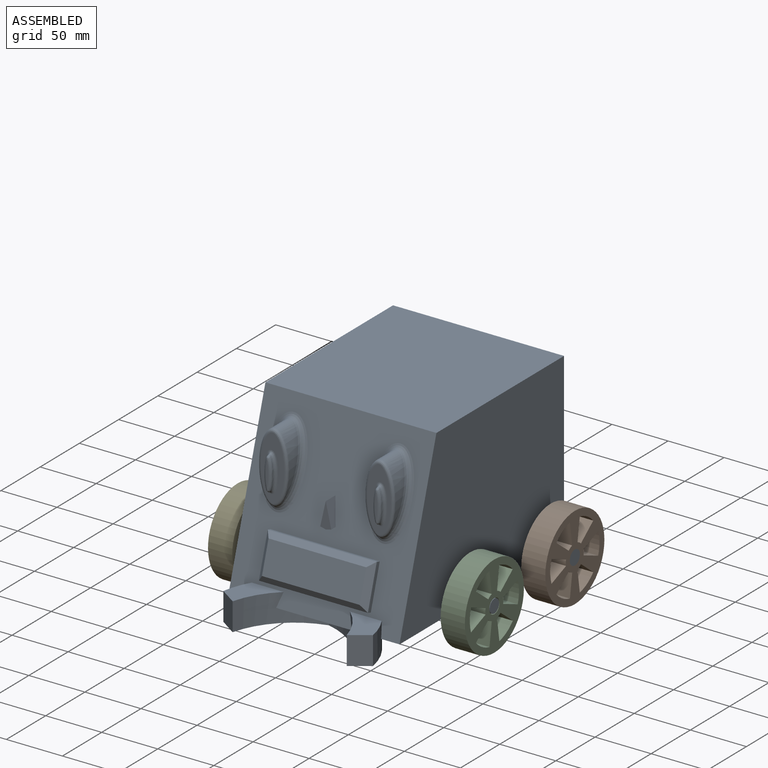
[diagram: assembled view]
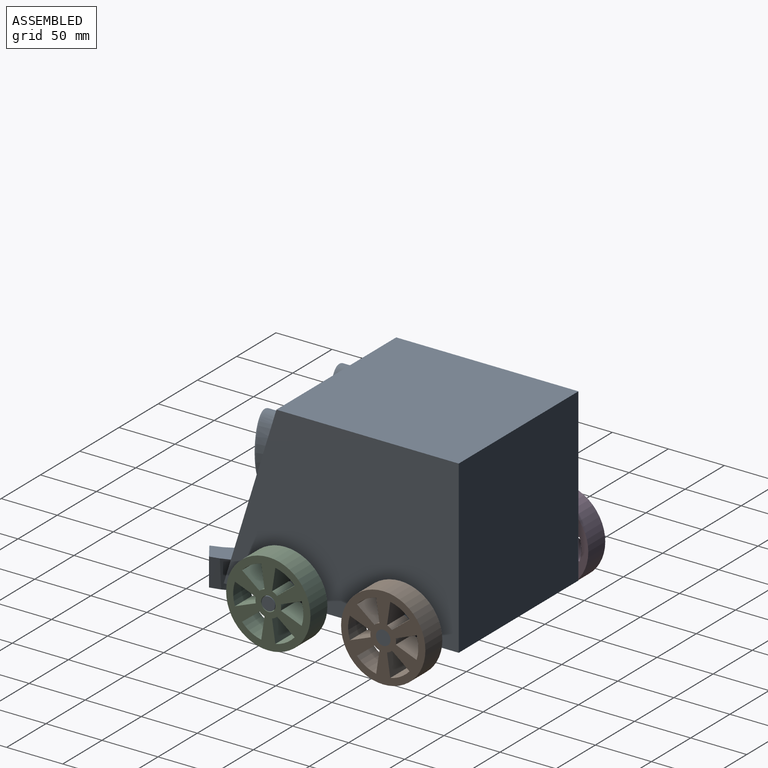
[diagram: assembled view, second angle]
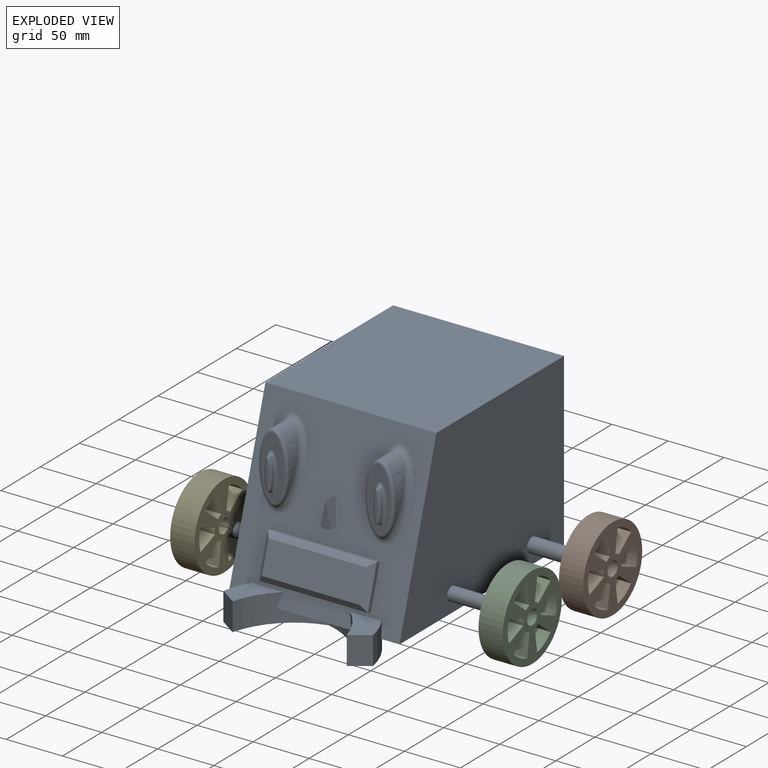
[diagram: exploded view]
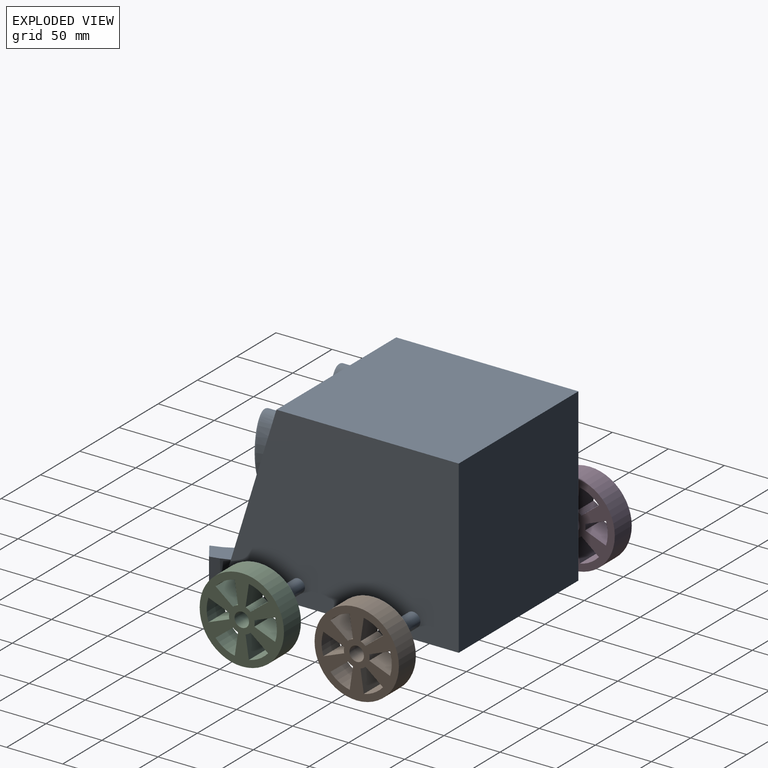
[diagram: exploded view, second angle]
ASSEMBLY  parts=5 mates=4
PART A: 62 faces, bbox 229.4x240.6x165.2 mm
  f0: plane 152.79x152.79mm, normal (0,-0.96,0.29), area 15368.9mm2, adj f1,f7,f8,f13,f17,f18,f19,f20
  f1: plane 209.56x152.54mm, normal (-1,0,0), area 28136.3mm2, adj f0,f2,f3,f5,f7,f23
  f2: plane 152.54x152.54mm, normal (0,1,0), area 23267mm2, adj f1,f7,f8,f23
  f3: cylinder r=6.48mm len=38.48mm, axis (-1,0,0), area 1567.1mm2, adj f1,f4
  f4: plane 12.96x12.96mm, normal (-1,0,0), area 132mm2, adj f3
  f5: cylinder r=5.98mm len=38.48mm, axis (-1,0,0), area 1446.3mm2, adj f1,f6
  f6: plane 11.96x11.96mm, normal (-1,0,0), area 112.4mm2, adj f5
  f7: plane 162.56x152.54mm, normal (0,0,1), area 24796.1mm2, adj f0,f1,f2,f8
  f8: plane 209.56x152.54mm, normal (1,0,0), area 28136.3mm2, adj f0,f2,f7,f9,f11,f23
  f9: cylinder r=6.48mm len=38.09mm, axis (-1,0,0), area 1551.4mm2, adj f8,f10
  f10: plane 12.96x12.96mm, normal (1,0,0), area 132mm2, adj f9
  f11: cylinder r=5.98mm len=38.09mm, axis (-1,0,0), area 1431.8mm2, adj f8,f12
  f12: plane 11.96x11.96mm, normal (1,0,0), area 112.4mm2, adj f11
  f13: cylinder r=68.83mm len=66.7mm, axis (0,0,-1), area 1476.7mm2, adj f0,f14,f16,f17,f22,f23
  f14: plane 133.41x68.04mm, normal (0,0,-1), area 3497.4mm2, adj f13,f15,f16,f18,f20,f22
  f15: plane 24.89x15.8mm, normal (-0.56,-0.83,0), area 476.6mm2, adj f14,f20,f21,f22
  f16: plane 24.89x15.8mm, normal (0.56,-0.83,0), area 476.6mm2, adj f13,f14,f17,f18
  f17: plane 37.11x34.59mm, normal (0,0,1), area 662.8mm2, adj f0,f13,f16,f18
  f18: cylinder r=69.75mm len=50.9mm, axis (0,0,-1), area 1411.3mm2, adj f0,f14,f16,f17,f19,f20
  f19: plane 67.21x19.3mm, normal (0,0,-1), area 791mm2, adj f0,f18,f20
  f20: cylinder r=69.75mm len=50.9mm, axis (0,0,-1), area 1411.3mm2, adj f0,f14,f15,f18,f19,f21
  f21: plane 37.11x34.59mm, normal (0,0,1), area 662.8mm2, adj f0,f15,f20,f22
  f22: cylinder r=68.83mm len=66.7mm, axis (0,0,-1), area 1476.7mm2, adj f0,f13,f14,f15,f21,f23
  f23: plane 209.56x152.54mm, normal (0,0,-1), area 28792.8mm2, adj f0,f1,f2,f8,f13,f22
  f24: plane 97.22x3.64mm, normal (0,-0.29,-0.96), area 370.4mm2, adj f0,f25,f30,f32
  f25: plane 97.22x6.35mm, normal (0,-0.88,-0.47), area 662mm2, adj f24,f26,f28,f29
  f26: plane 36.81x14.7mm, normal (-0.71,-0.68,0.21), area 240.2mm2, adj f25,f27,f28,f32
  f27: plane 97.22x6.35mm, normal (0,-0.47,0.88), area 662mm2, adj f26,f28,f29,f31
  f28: plane 87.06x27.1mm, normal (0,-0.96,0.29), area 2468.8mm2, adj f25,f26,f27,f29
  f29: plane 36.81x14.7mm, normal (0.71,-0.68,0.21), area 240.2mm2, adj f25,f27,f28,f30
  f30: plane 37.93x14.98mm, normal (1,0,0), area 146.7mm2, adj f0,f24,f29,f31
  f31: plane 97.22x3.64mm, normal (0,0.29,0.96), area 370.4mm2, adj f0,f27,f30,f32
  f32: plane 37.93x14.98mm, normal (-1,0,0), area 146.7mm2, adj f0,f24,f26,f31
  f33: plane 5.57x4.98mm, normal (-0.22,0,-0.97), area 27.6mm2, adj f0,f34,f35,f37
  f34: plane 22.83x9.8mm, normal (0,-1,0), area 111.9mm2, adj f33,f35,f36,f37
  f35: plane 5.57x4.83mm, normal (0.23,0,-0.97), area 26.8mm2, adj f0,f33,f34,f36
  f36: plane 21.68x12.26mm, normal (0.98,0,0.22), area 198mm2, adj f0,f34,f35,f37
  f37: plane 21.68x12.26mm, normal (-0.97,0,0.22), area 198.3mm2, adj f0,f33,f34,f36
  f38: bspline ~25.77x13.36mm, area 185.7mm2, adj f0,f39,f49
  f39: bspline ~62.02x26.34mm, area 536.5mm2, adj f38,f40,f48
  f40: plane 57.48x21.45mm, normal (0,-1,0), area 606.1mm2, adj f39,f41
  f41: bspline ~35.21x12.05mm, area 270.4mm2, adj f40,f42
  f42: extruded ~30.22x7.12mm, area 27.7mm2, adj f41,f43,f45,f46,f47
  f43: bspline ~28.16x4.37mm, area 95.6mm2, adj f42,f44,f45,f47
  f44: plane 21.39x2.23mm, normal (0,-1,0), area 33.1mm2, adj f43,f46
  f45: bspline ~4.46x2.91mm, area 8.5mm2, adj f42,f43,f46
  f46: bspline ~28.13x4.39mm, area 95.7mm2, adj f42,f44,f45,f47
  f47: bspline ~4.46x2.91mm, area 11.7mm2, adj f42,f43,f46
  f48: extruded ~57.02x26.34mm, area 0mm2, adj f39,f49
  f49: bspline ~66.2x36.51mm, area 1092.4mm2, adj f0,f38,f48
  f50: bspline ~25.77x13.36mm, area 185.7mm2, adj f0,f51,f61
  f51: bspline ~62.02x26.34mm, area 536.5mm2, adj f50,f52,f60
  f52: plane 57.48x21.45mm, normal (0,-1,0), area 606.1mm2, adj f51,f53
  f53: bspline ~35.21x12.05mm, area 270.4mm2, adj f52,f54
  f54: extruded ~30.22x7.12mm, area 27.7mm2, adj f53,f55,f57,f58,f59
  f55: bspline ~28.16x4.37mm, area 95.6mm2, adj f54,f56,f57,f59
  f56: plane 21.39x2.23mm, normal (0,-1,0), area 33.1mm2, adj f55,f58
  f57: bspline ~4.46x2.91mm, area 8.5mm2, adj f54,f55,f58
  f58: bspline ~28.13x4.39mm, area 95.7mm2, adj f54,f56,f57,f59
  f59: bspline ~4.46x2.91mm, area 11.7mm2, adj f54,f55,f58
  f60: extruded ~57.02x26.34mm, area 0mm2, adj f51,f61
  f61: bspline ~66.2x36.51mm, area 1092.4mm2, adj f0,f50,f60
PART B: 28 faces, bbox 21.6x75.2x75.2 mm
  f0: cylinder r=11.45mm len=21.59mm, axis (1,0,0), area 112.3mm2, adj f1,f19,f26,f27
  f1: plane 21.59x18.58mm, normal (0,0.37,0.93), area 431.3mm2, adj f0,f2,f26,f27
  f2: cylinder r=31.35mm len=21.59mm, axis (1,0,0), area 435.6mm2, adj f1,f19,f26,f27
  f3: plane 21.59x19.76mm, normal (0,0.99,-0.15), area 431.3mm2, adj f4,f20,f26,f27
  f4: cylinder r=11.45mm len=21.59mm, axis (1,0,0), area 112.3mm2, adj f3,f5,f26,f27
  f5: plane 21.59x15.65mm, normal (0,-0.62,0.78), area 431.3mm2, adj f4,f20,f26,f27
  f6: plane 21.59x15.65mm, normal (0,0.62,0.78), area 431.3mm2, adj f7,f21,f26,f27
  f7: cylinder r=11.45mm len=21.59mm, axis (1,0,0), area 112.3mm2, adj f6,f8,f26,f27
  f8: plane 21.59x19.76mm, normal (0,-0.99,-0.15), area 431.3mm2, adj f7,f21,f26,f27
  f9: plane 21.59x18.58mm, normal (0,-0.37,0.93), area 431.3mm2, adj f10,f22,f26,f27
  f10: cylinder r=11.45mm len=21.59mm, axis (1,0,0), area 112.3mm2, adj f9,f11,f26,f27
  f11: plane 21.59x18.58mm, normal (0,-0.37,-0.93), area 431.3mm2, adj f10,f22,f26,f27
  f12: plane 21.59x19.76mm, normal (0,-0.99,0.15), area 431.3mm2, adj f13,f23,f26,f27
  f13: cylinder r=11.45mm len=21.59mm, axis (1,0,0), area 112.3mm2, adj f12,f14,f26,f27
  f14: plane 21.59x15.65mm, normal (0,0.62,-0.78), area 431.3mm2, adj f13,f23,f26,f27
  f15: plane 21.59x15.65mm, normal (0,-0.62,-0.78), area 431.3mm2, adj f16,f24,f26,f27
  f16: cylinder r=11.45mm len=21.59mm, axis (1,0,0), area 112.3mm2, adj f15,f17,f26,f27
  f17: plane 21.59x19.76mm, normal (0,0.99,0.15), area 431.3mm2, adj f16,f24,f26,f27
  f18: cylinder r=6.48mm len=21.59mm, axis (1,0,0), area 879.3mm2, adj f26,f27
  f19: plane 21.59x18.58mm, normal (0,0.37,-0.93), area 431.3mm2, adj f0,f2,f26,f27
  f20: cylinder r=31.35mm len=21.59mm, axis (1,0,0), area 435.6mm2, adj f3,f5,f26,f27
  f21: cylinder r=31.35mm len=21.59mm, axis (1,0,0), area 435.6mm2, adj f6,f8,f26,f27
  f22: cylinder r=31.35mm len=21.59mm, axis (1,0,0), area 435.6mm2, adj f9,f11,f26,f27
  f23: cylinder r=31.35mm len=21.59mm, axis (1,0,0), area 435.6mm2, adj f12,f14,f26,f27
  f24: cylinder r=31.35mm len=21.59mm, axis (1,0,0), area 435.6mm2, adj f15,f17,f26,f27
  f25: cylinder r=37.62mm len=75.23mm, axis (1,0,0), area 5102.6mm2, adj f26,f27
  f26: plane 75.23x75.23mm, normal (-1,0,0), area 2798mm2, adj f0,f1,f2,f3,f4,f5,f6,f7
  f27: plane 75.23x75.23mm, normal (1,0,0), area 2798mm2, adj f0,f1,f2,f3,f4,f5,f6,f7
PART C: same geometry as B
PART D: 28 faces, bbox 21.6x75.2x75.2 mm
  f0: cylinder r=11.45mm len=21.59mm, axis (1,0,0), area 112.3mm2, adj f1,f19,f26,f27
  f1: plane 21.59x18.58mm, normal (0,0.37,0.93), area 431.3mm2, adj f0,f2,f26,f27
  f2: cylinder r=31.35mm len=21.59mm, axis (1,0,0), area 435.6mm2, adj f1,f19,f26,f27
  f3: plane 21.59x19.76mm, normal (0,0.99,-0.15), area 431.3mm2, adj f4,f20,f26,f27
  f4: cylinder r=11.45mm len=21.59mm, axis (1,0,0), area 112.3mm2, adj f3,f5,f26,f27
  f5: plane 21.59x15.65mm, normal (0,-0.62,0.78), area 431.3mm2, adj f4,f20,f26,f27
  f6: plane 21.59x15.65mm, normal (0,0.62,0.78), area 431.3mm2, adj f7,f21,f26,f27
  f7: cylinder r=11.45mm len=21.59mm, axis (1,0,0), area 112.3mm2, adj f6,f8,f26,f27
  f8: plane 21.59x19.76mm, normal (0,-0.99,-0.15), area 431.3mm2, adj f7,f21,f26,f27
  f9: plane 21.59x18.58mm, normal (0,-0.37,0.93), area 431.3mm2, adj f10,f22,f26,f27
  f10: cylinder r=11.45mm len=21.59mm, axis (1,0,0), area 112.3mm2, adj f9,f11,f26,f27
  f11: plane 21.59x18.58mm, normal (0,-0.37,-0.93), area 431.3mm2, adj f10,f22,f26,f27
  f12: plane 21.59x19.76mm, normal (0,-0.99,0.15), area 431.3mm2, adj f13,f23,f26,f27
  f13: cylinder r=11.45mm len=21.59mm, axis (1,0,0), area 112.3mm2, adj f12,f14,f26,f27
  f14: plane 21.59x15.65mm, normal (0,0.62,-0.78), area 431.3mm2, adj f13,f23,f26,f27
  f15: plane 21.59x15.65mm, normal (0,-0.62,-0.78), area 431.3mm2, adj f16,f24,f26,f27
  f16: cylinder r=11.45mm len=21.59mm, axis (1,0,0), area 112.3mm2, adj f15,f17,f26,f27
  f17: plane 21.59x19.76mm, normal (0,0.99,0.15), area 431.3mm2, adj f16,f24,f26,f27
  f18: cylinder r=6.48mm len=21.59mm, axis (1,0,0), area 879.3mm2, adj f26,f27
  f19: plane 21.59x18.58mm, normal (0,0.37,-0.93), area 431.3mm2, adj f0,f2,f26,f27
  f20: cylinder r=31.35mm len=21.59mm, axis (1,0,0), area 435.6mm2, adj f3,f5,f26,f27
  f21: cylinder r=31.35mm len=21.59mm, axis (1,0,0), area 435.6mm2, adj f6,f8,f26,f27
  f22: cylinder r=31.35mm len=21.59mm, axis (1,0,0), area 435.6mm2, adj f9,f11,f26,f27
  f23: cylinder r=31.35mm len=21.59mm, axis (1,0,0), area 435.6mm2, adj f12,f14,f26,f27
  f24: cylinder r=31.35mm len=21.59mm, axis (1,0,0), area 435.6mm2, adj f15,f17,f26,f27
  f25: cylinder r=37.62mm len=75.23mm, axis (1,0,0), area 5102.6mm2, adj f26,f27
  f26: plane 75.23x75.23mm, normal (-1,0,0), area 2798mm2, adj f0,f1,f2,f3,f4,f5,f6,f7
  f27: plane 75.23x75.23mm, normal (1,0,0), area 2798mm2, adj f0,f1,f2,f3,f4,f5,f6,f7
PART E: 28 faces, bbox 21.6x75.2x75.2 mm
  f0: cylinder r=11.45mm len=21.59mm, axis (-1,0,0), area 112.3mm2, adj f1,f19,f26,f27
  f1: plane 21.59x18.58mm, normal (0,0.37,0.93), area 431.3mm2, adj f0,f2,f26,f27
  f2: cylinder r=31.35mm len=21.59mm, axis (-1,0,0), area 435.6mm2, adj f1,f19,f26,f27
  f3: plane 21.59x19.76mm, normal (0,0.99,-0.15), area 431.3mm2, adj f4,f20,f26,f27
  f4: cylinder r=11.45mm len=21.59mm, axis (-1,0,0), area 112.3mm2, adj f3,f5,f26,f27
  f5: plane 21.59x15.65mm, normal (0,-0.62,0.78), area 431.3mm2, adj f4,f20,f26,f27
  f6: plane 21.59x15.65mm, normal (0,0.62,0.78), area 431.3mm2, adj f7,f21,f26,f27
  f7: cylinder r=11.45mm len=21.59mm, axis (-1,0,0), area 112.3mm2, adj f6,f8,f26,f27
  f8: plane 21.59x19.76mm, normal (0,-0.99,-0.15), area 431.3mm2, adj f7,f21,f26,f27
  f9: plane 21.59x18.58mm, normal (0,-0.37,0.93), area 431.3mm2, adj f10,f22,f26,f27
  f10: cylinder r=11.45mm len=21.59mm, axis (-1,0,0), area 112.3mm2, adj f9,f11,f26,f27
  f11: plane 21.59x18.58mm, normal (0,-0.37,-0.93), area 431.3mm2, adj f10,f22,f26,f27
  f12: plane 21.59x19.76mm, normal (0,-0.99,0.15), area 431.3mm2, adj f13,f23,f26,f27
  f13: cylinder r=11.45mm len=21.59mm, axis (-1,0,0), area 112.3mm2, adj f12,f14,f26,f27
  f14: plane 21.59x15.65mm, normal (0,0.62,-0.78), area 431.3mm2, adj f13,f23,f26,f27
  f15: plane 21.59x15.65mm, normal (0,-0.62,-0.78), area 431.3mm2, adj f16,f24,f26,f27
  f16: cylinder r=11.45mm len=21.59mm, axis (-1,0,0), area 112.3mm2, adj f15,f17,f26,f27
  f17: plane 21.59x19.76mm, normal (0,0.99,0.15), area 431.3mm2, adj f16,f24,f26,f27
  f18: cylinder r=6.48mm len=21.59mm, axis (-1,0,0), area 879.3mm2, adj f26,f27
  f19: plane 21.59x18.58mm, normal (0,0.37,-0.93), area 431.3mm2, adj f0,f2,f26,f27
  f20: cylinder r=31.35mm len=21.59mm, axis (-1,0,0), area 435.6mm2, adj f3,f5,f26,f27
  f21: cylinder r=31.35mm len=21.59mm, axis (-1,0,0), area 435.6mm2, adj f6,f8,f26,f27
  f22: cylinder r=31.35mm len=21.59mm, axis (-1,0,0), area 435.6mm2, adj f9,f11,f26,f27
  f23: cylinder r=31.35mm len=21.59mm, axis (-1,0,0), area 435.6mm2, adj f12,f14,f26,f27
  f24: cylinder r=31.35mm len=21.59mm, axis (-1,0,0), area 435.6mm2, adj f15,f17,f26,f27
  f25: cylinder r=37.62mm len=75.23mm, axis (-1,0,0), area 5102.6mm2, adj f26,f27
  f26: plane 75.23x75.23mm, normal (1,0,0), area 2798mm2, adj f0,f1,f2,f3,f4,f5,f6,f7
  f27: plane 75.23x75.23mm, normal (-1,0,0), area 2798mm2, adj f0,f1,f2,f3,f4,f5,f6,f7
PLACE A t=(-101.54,-30.06,30.94)mm
PLACE B t=(-94.94,-30.06,30.94)mm
PLACE C t=(-94.94,-132.56,30.94)mm
PLACE D t=(-302.71,74.08,31.95)mm
PLACE E t=(-107.89,-28.42,31.95)mm
MATE revolute C.f0 <-> A.f5  axis (1,0,0) through (13.01,-132.56,-29.63)mm
MATE revolute B.f0 <-> A.f3  axis (1,0,0) through (13.01,-30.06,-29.63)mm
MATE revolute D.f0 <-> A.f3  axis (-1,0,0) through (-216.1,-30.06,-29.63)mm
MATE revolute E.f0 <-> A.f5  axis (-1,0,0) through (-216.1,-132.56,-29.63)mm
